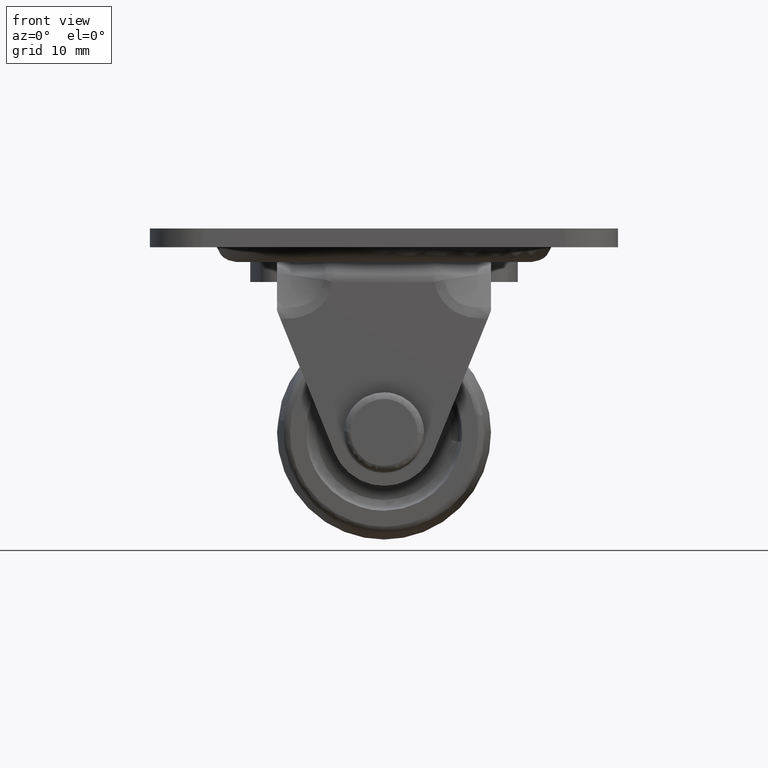
[diagram: clean part render]
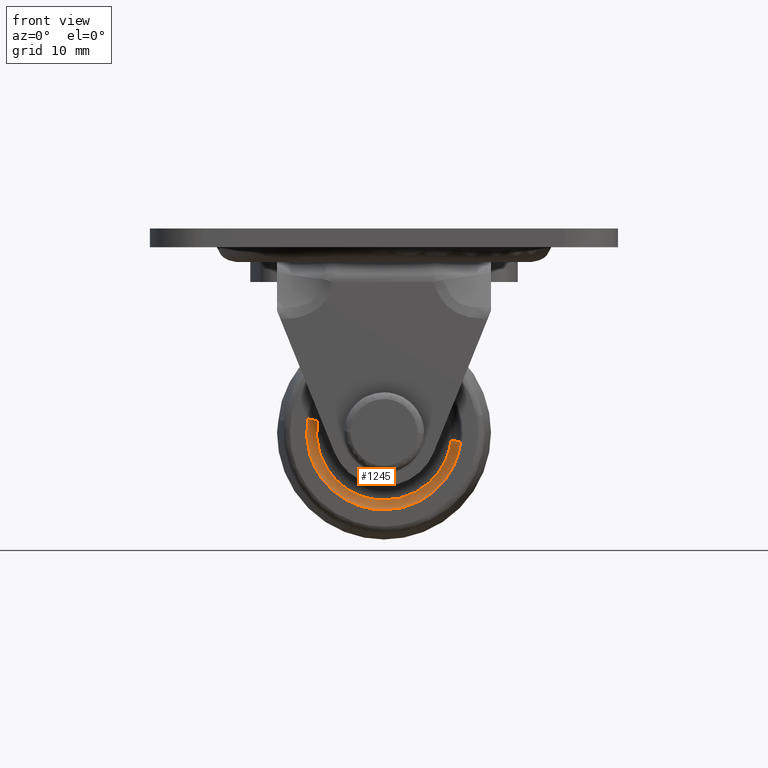
[diagram: same view with one face highlighted and labeled with its STEP entity id]
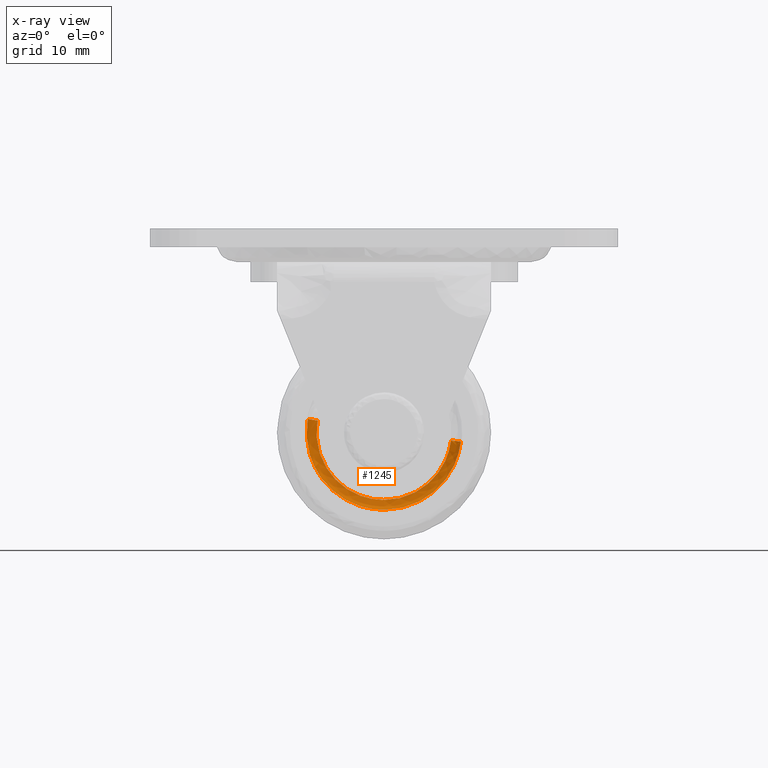
[diagram: x-ray of the same camera — body ghosted, the highlighted face saturated]
A machine part, front view. The second image highlights one B-rep face of the part: STEP entity #1245.
The next image is the same camera in x-ray: the body ghosted, the highlighted face saturated — about 0% of this face is hidden behind the body in this view.
In plain terms, the highlighted face is a freeform B-spline surface patch.
Its self-contained STEP definition (entity closure, byte-faithful):
#70=CARTESIAN_POINT('',(-3.571417695954141,-9.739526577162947,-11.010363774026221));
#71=VERTEX_POINT('',#70);
#72=CARTESIAN_POINT('',(0.0,-9.739526299650310,-11.575108581589509));
#73=VERTEX_POINT('',#72);
#74=CARTESIAN_POINT('',(-3.571417695954141,-9.739526577162947,-11.010363774026223));
#75=CARTESIAN_POINT('',(-1.830360117508407,-9.739526420871789,-11.575108577848644));
#76=CARTESIAN_POINT('',(0.0,-9.739526299650310,-11.575108581589509));
#84=(BOUNDED_CURVE()B_SPLINE_CURVE(2,(#74,#75,#76),.UNSPECIFIED.,.F.,.U.)B_SPLINE_CURVE_WITH_KNOTS((3,3),(0.947529705935450,1.0),.UNSPECIFIED.)CURVE()GEOMETRIC_REPRESENTATION_ITEM()RATIONAL_B_SPLINE_CURVE((0.902858409363583,0.938527226717382,1.0))REPRESENTATION_ITEM(''));
#85=EDGE_CURVE('',#71,#73,#84,.T.);
#143=CARTESIAN_POINT('',(-9.304727347630246,-9.739527281926611,-6.885140051001788));
#144=VERTEX_POINT('',#143);
#150=CARTESIAN_POINT('',(-11.396438200070939,-9.739528129433548,2.025890838234668));
#151=VERTEX_POINT('',#150);
#152=CARTESIAN_POINT('',(-11.396438200070946,-9.739528129433548,2.025890838234668));
#153=CARTESIAN_POINT('',(-11.575104887500295,-9.739528061826080,1.020821887342932));
#154=CARTESIAN_POINT('',(-11.575104873493400,-9.739527981140416,-0.000003948109518));
#155=CARTESIAN_POINT('',(-11.575104821121208,-9.739527679454398,-3.816901096475361));
#156=CARTESIAN_POINT('',(-9.304727347630246,-9.739527281926613,-6.885140051001788));
#164=(BOUNDED_CURVE()B_SPLINE_CURVE(2,(#152,#153,#154,#155,#156),.UNSPECIFIED.,.F.,.U.)B_SPLINE_CURVE_WITH_KNOTS((3,2,3),(0.719918477714453,0.750000000000000,0.852574119366888),.UNSPECIFIED.)CURVE()GEOMETRIC_REPRESENTATION_ITEM()RATIONAL_B_SPLINE_CURVE((0.937995840342007,0.964757304443911,1.0,0.879826944046707,0.858267051181709))REPRESENTATION_ITEM(''));
#165=EDGE_CURVE('',#151,#144,#164,.T.);
#182=CARTESIAN_POINT('',(11.493647694561851,-9.739526299630565,-1.370809875369271));
#183=VERTEX_POINT('',#182);
#199=CARTESIAN_POINT('',(0.0,-9.739526299650310,-11.575108581589509));
#200=CARTESIAN_POINT('',(10.276617819254454,-9.739526299650311,-11.575108581589511));
#201=CARTESIAN_POINT('',(11.493647694561860,-9.739526299630565,-1.370809875369270));
#209=(BOUNDED_CURVE()B_SPLINE_CURVE(2,(#199,#200,#201),.UNSPECIFIED.,.F.,.U.)B_SPLINE_CURVE_WITH_KNOTS((3,3),(0.0,0.229495616429060),.UNSPECIFIED.)CURVE()GEOMETRIC_REPRESENTATION_ITEM()RATIONAL_B_SPLINE_CURVE((1.0,0.731129160802061,0.955895753456360))REPRESENTATION_ITEM(''));
#210=EDGE_CURVE('',#73,#183,#209,.T.);
#229=CARTESIAN_POINT('',(-9.304727347630246,-9.739527281926611,-6.885140051001788));
#230=CARTESIAN_POINT('',(-7.098886388739000,-9.739526904871244,-9.866162827177034));
#231=CARTESIAN_POINT('',(-3.571417695954142,-9.739526577162947,-11.010363774026224));
#239=(BOUNDED_CURVE()B_SPLINE_CURVE(2,(#229,#230,#231),.UNSPECIFIED.,.F.,.U.)B_SPLINE_CURVE_WITH_KNOTS((3,3),(0.852574119366889,0.947529705935450),.UNSPECIFIED.)CURVE()GEOMETRIC_REPRESENTATION_ITEM()RATIONAL_B_SPLINE_CURVE((0.858267051181709,0.838308485746419,0.902858409363584))REPRESENTATION_ITEM(''));
#240=EDGE_CURVE('',#144,#71,#239,.T.);
#1115=CARTESIAN_POINT('',(-9.942025255129096,-8.499998566150699,1.767360113822121));
#1116=VERTEX_POINT('',#1115);
#1117=CARTESIAN_POINT('',(-9.942025255129096,-8.499998566150699,1.767360113822121));
#1118=CARTESIAN_POINT('',(-11.181249539466938,-8.499998567229696,1.987645352068925));
#1119=CARTESIAN_POINT('',(-11.396438200070945,-9.739528129433548,2.025890838234669));
#1127=(BOUNDED_CURVE()B_SPLINE_CURVE(2,(#1117,#1118,#1119),.UNSPECIFIED.,.F.,.U.)B_SPLINE_CURVE_WITH_KNOTS((3,3),(-1.711130094631592,-0.301119772214383),.UNSPECIFIED.)CURVE()GEOMETRIC_REPRESENTATION_ITEM()RATIONAL_B_SPLINE_CURVE((0.895978410251917,0.684965266294949,0.892343515686581))REPRESENTATION_ITEM(''));
#1128=EDGE_CURVE('',#1116,#151,#1127,.T.);
#1145=CARTESIAN_POINT('',(10.026831573444170,-8.499998566150701,-1.195868011195998));
#1146=VERTEX_POINT('',#1145);
#1162=CARTESIAN_POINT('',(10.026831573444172,-8.499998566150703,-1.195868011195997));
#1163=CARTESIAN_POINT('',(11.276623589097449,-8.499998571469009,-1.344926193630373));
#1164=CARTESIAN_POINT('',(11.493647694561862,-9.739526299630565,-1.370809875369270));
#1172=(BOUNDED_CURVE()B_SPLINE_CURVE(2,(#1162,#1163,#1164),.UNSPECIFIED.,.F.,.U.)B_SPLINE_CURVE_WITH_KNOTS((3,3),(-1.711130090928249,-0.301121128049849),.UNSPECIFIED.)CURVE()GEOMETRIC_REPRESENTATION_ITEM()RATIONAL_B_SPLINE_CURVE((0.875824092324941,0.669557720020391,0.872270573036195))REPRESENTATION_ITEM(''));
#1173=EDGE_CURVE('',#1146,#183,#1172,.T.);
#1178=CARTESIAN_POINT('',(-9.848576574684611,-8.503004450389756,1.750748021174736));
#1179=CARTESIAN_POINT('',(-11.599328595859337,-8.503004450389755,-8.097828553509874));
#1180=CARTESIAN_POINT('',(-1.750752021174725,-8.503004450389756,-9.848580574684602));
#1181=CARTESIAN_POINT('',(8.097824553509884,-8.503004450389755,-11.599332595859329));
#1182=CARTESIAN_POINT('',(9.848576574684611,-8.503004450389756,-1.750756021174715));
#1183=CARTESIAN_POINT('',(9.898682297005639,-8.503004450389755,-1.468894262833068));
#1184=CARTESIAN_POINT('',(9.932585699994270,-8.503004450389755,-1.184628201737926));
#1185=CARTESIAN_POINT('',(-11.253884871050294,-8.412506969947824,2.000565476679936));
#1186=CARTESIAN_POINT('',(-13.254454347730219,-8.412506969947824,-9.253319394370360));
#1187=CARTESIAN_POINT('',(-2.000569476679926,-8.412506969947824,-11.253888871050286));
#1188=CARTESIAN_POINT('',(9.253315394370368,-8.412506969947824,-13.254458347730210));
#1189=CARTESIAN_POINT('',(11.253884871050294,-8.412506969947824,-2.000573476679915));
#1190=CARTESIAN_POINT('',(11.311140254719756,-8.412506969947824,-1.678492437468390));
#1191=CARTESIAN_POINT('',(11.349881385590550,-8.412506969947827,-1.353664021904782));
#1192=CARTESIAN_POINT('',(-11.409791724721090,-9.833919960370345,2.028280572065470));
#1193=CARTESIAN_POINT('',(-13.438076296786550,-9.833919960370347,-9.381511152655621));
#1194=CARTESIAN_POINT('',(-2.028284572065461,-9.833919960370345,-11.409795724721077));
#1195=CARTESIAN_POINT('',(9.381507152655628,-9.833919960370347,-13.438080296786538));
#1196=CARTESIAN_POINT('',(11.409791724721090,-9.833919960370345,-2.028288572065450));
#1197=CARTESIAN_POINT('',(11.467840301747861,-9.833919960370345,-1.701745549989709));
#1198=CARTESIAN_POINT('',(11.507118136867085,-9.833919960370348,-1.372417090500499));
#1206=(BOUNDED_SURFACE()B_SPLINE_SURFACE(2,2,((#1178,#1185,#1192),(#1179,#1186,#1193),(#1180,#1187,#1194),(#1181,#1188,#1195),(#1182,#1189,#1196),(#1183,#1190,#1197),(#1184,#1191,#1198)),.UNSPECIFIED.,.F.,.F.,.U.)B_SPLINE_SURFACE_WITH_KNOTS((3,2,2,3),(3,3),(0.0,19.200738074639620,38.401476149279247,39.169504939814800),(0.0,2.401984691318274),.UNSPECIFIED.)GEOMETRIC_REPRESENTATION_ITEM()RATIONAL_B_SPLINE_SURFACE(((0.918102605238340,0.663022726575890,0.914104403008009),(0.649196577989066,0.468827866042606,0.646369422079444),(0.918102605238340,0.663022726575890,0.914104403008009),(0.649196577989066,0.468827866042606,0.646369422079444),(0.918102605238340,0.663022726575890,0.914104403008009),(0.907346374406320,0.655254939562505,0.903395013984145),(0.897450641220226,0.648108574917555,0.893542375265129)))REPRESENTATION_ITEM('')SURFACE());
#1207=ORIENTED_EDGE('',*,*,#210,.T.);
#1208=ORIENTED_EDGE('',*,*,#1173,.F.);
#1209=CARTESIAN_POINT('',(0.0,-8.499998566150699,-10.097896952071190));
#1210=VERTEX_POINT('',#1209);
#1211=CARTESIAN_POINT('',(0.0,-8.499998566150699,-10.097896952071190));
#1212=CARTESIAN_POINT('',(8.965118708968612,-8.499998566150701,-10.097896952071190));
#1213=CARTESIAN_POINT('',(10.026831573444172,-8.499998566150701,-1.195868011195998));
#1221=(BOUNDED_CURVE()B_SPLINE_CURVE(2,(#1211,#1212,#1213),.UNSPECIFIED.,.F.,.U.)B_SPLINE_CURVE_WITH_KNOTS((3,3),(0.0,0.229495616420163),.UNSPECIFIED.)CURVE()GEOMETRIC_REPRESENTATION_ITEM()RATIONAL_B_SPLINE_CURVE((1.0,0.731129160812484,0.955895753438933))REPRESENTATION_ITEM(''));
#1222=EDGE_CURVE('',#1210,#1146,#1221,.T.);
#1223=ORIENTED_EDGE('',*,*,#1222,.F.);
#1224=CARTESIAN_POINT('',(-9.942025255129096,-8.499998566150699,1.767360113822121));
#1225=CARTESIAN_POINT('',(-10.097892952071200,-8.499998566150699,0.890551213048061));
#1226=CARTESIAN_POINT('',(-10.097892952071200,-8.499998566150699,-0.000003999999988));
#1227=CARTESIAN_POINT('',(-10.097892952071200,-8.499998566150699,-10.097896952071190));
#1228=CARTESIAN_POINT('',(0.0,-8.499998566150699,-10.097896952071190));
#1236=(BOUNDED_CURVE()B_SPLINE_CURVE(2,(#1224,#1225,#1226,#1227,#1228),.UNSPECIFIED.,.F.,.U.)B_SPLINE_CURVE_WITH_KNOTS((3,2,3),(0.719918253209182,0.750000000000000,1.0),.UNSPECIFIED.)CURVE()GEOMETRIC_REPRESENTATION_ITEM()RATIONAL_B_SPLINE_CURVE((0.937995440888641,0.964757041419624,1.0,0.707106781186548,1.0))REPRESENTATION_ITEM(''));
#1237=EDGE_CURVE('',#1116,#1210,#1236,.T.);
#1238=ORIENTED_EDGE('',*,*,#1237,.F.);
#1239=ORIENTED_EDGE('',*,*,#1128,.T.);
#1240=ORIENTED_EDGE('',*,*,#165,.T.);
#1241=ORIENTED_EDGE('',*,*,#240,.T.);
#1242=ORIENTED_EDGE('',*,*,#85,.T.);
#1243=EDGE_LOOP('',(#1207,#1208,#1223,#1238,#1239,#1240,#1241,#1242));
#1244=FACE_OUTER_BOUND('',#1243,.T.);
#1245=ADVANCED_FACE('',(#1244),#1206,.F.);